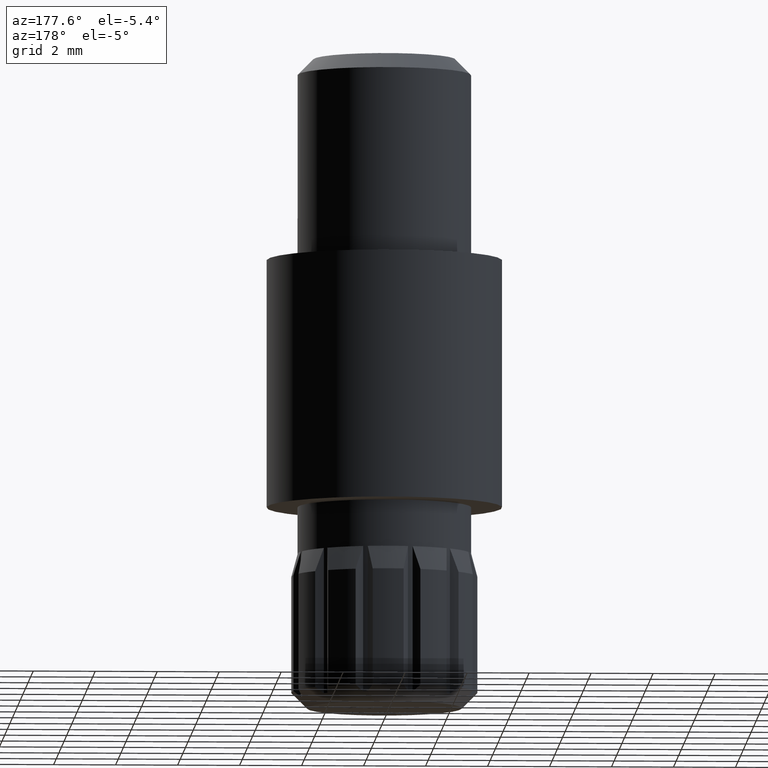
[diagram: clean part render]
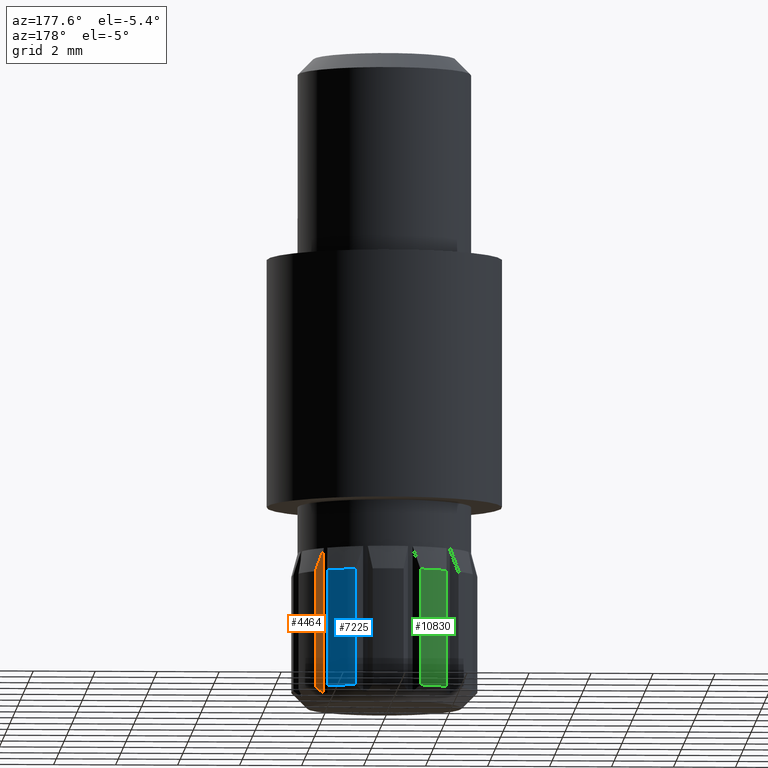
[diagram: same view with three faces highlighted in distinct colors, each labeled with its STEP entity id]
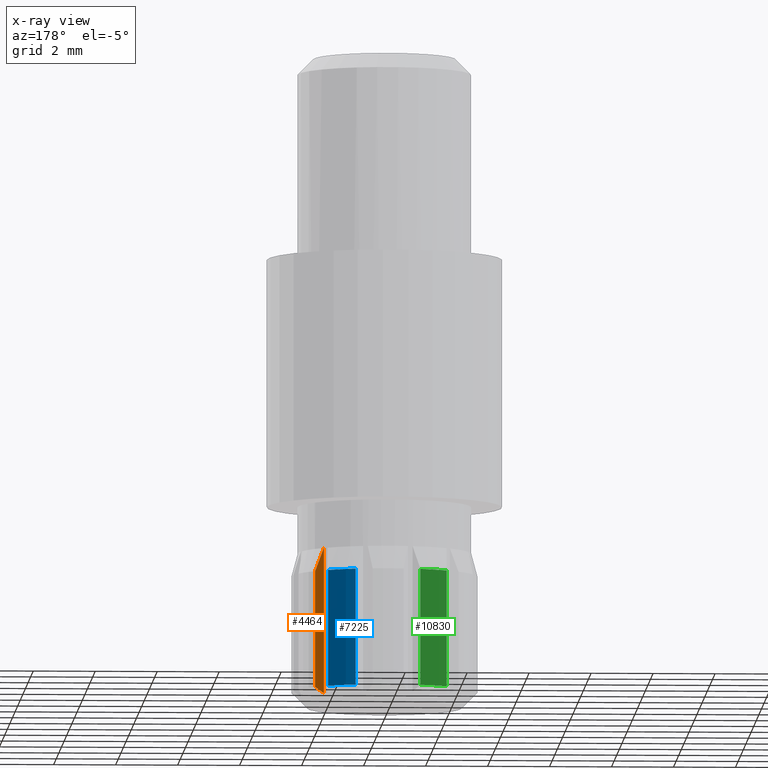
[diagram: x-ray of the same camera — body ghosted, the three highlighted faces saturated]
A machine part, auxiliary view with three faces highlighted in distinct colors.
The next image is the same camera in x-ray (body ghosted, the three faces saturated) — at least one of them is partly hidden behind the body in this view.
Their STEP definitions:

[orange] entity #4464 — the highlighted planar face has unit normal (0.0454, 0.999, 0).
#162 = CARTESIAN_POINT ( 'NONE',  ( 2.311737691489904378, 1.912032647667118335, 0.4999999999999998890 ) ) ;
#497 = DIRECTION ( 'NONE',  ( 0.000000000000000000, 0.000000000000000000, -1.000000000000000000 ) ) ;
#917 = VERTEX_POINT ( 'NONE', #162 ) ;
#1213 = EDGE_LOOP ( 'NONE', ( #10471, #11969, #3625, #2129 ) ) ;
#1222 = LINE ( 'NONE', #11818, #11319 ) ;
#2005 = VERTEX_POINT ( 'NONE', #11991 ) ;
#2129 = ORIENTED_EDGE ( 'NONE', *, *, #11508, .F. ) ;
#2152 = CARTESIAN_POINT ( 'NONE',  ( 2.311737691489904378, 1.912032647667118335, 5.000000000000000000 ) ) ;
#2288 = CARTESIAN_POINT ( 'NONE',  ( 2.311737691489904378, 1.912032647667118335, 0.4999999999999998890 ) ) ;
#2307 = DIRECTION ( 'NONE',  ( 0.04539650666530480744, 0.9989690471594137033, 0.000000000000000000 ) ) ;
#2692 = EDGE_CURVE ( 'NONE', #2005, #917, #4807, .T. ) ;
#3169 = CARTESIAN_POINT ( 'NONE',  ( 2.221517232374592865, 1.916132568165376915, 4.500908567543602246 ) ) ;
#3230 = DIRECTION ( 'NONE',  ( -0.9989690471594137033, 0.04539650666530480744, 0.000000000000000000 ) ) ;
#3625 = ORIENTED_EDGE ( 'NONE', *, *, #2692, .F. ) ;
#4232 = VECTOR ( 'NONE', #11677, 1000.000000000000000 ) ;
#4318 = EDGE_CURVE ( 'NONE', #7635, #917, #7195, .T. ) ;
#4464 = ADVANCED_FACE ( 'NONE', ( #5884 ), #6094, .T. ) ;
#4807 = B_SPLINE_CURVE_WITH_KNOTS ( 'NONE', 3,
 ( #8618, #9888, #10866, #2288 ),
 .UNSPECIFIED., .F., .F.,
 ( 4, 4 ),
 ( 2.437016887063888179E-07, 0.0003430335042216862886 ),
 .UNSPECIFIED. ) ;
#5884 = FACE_OUTER_BOUND ( 'NONE', #1213, .T. ) ;
#6094 = PLANE ( 'NONE',  #11198 ) ;
#6613 = B_SPLINE_CURVE_WITH_KNOTS ( 'NONE', 3,
 ( #7863, #3169, #11568, #9779 ),
 .UNSPECIFIED., .F., .F.,
 ( 4, 4 ),
 ( 2.125509851734810103E-07, 0.0008002155814297953230 ),
 .UNSPECIFIED. ) ;
#7195 = LINE ( 'NONE', #2152, #4232 ) ;
#7635 = VERTEX_POINT ( 'NONE', #11117 ) ;
#7863 = CARTESIAN_POINT ( 'NONE',  ( 2.311737691489905711, 1.912032647667118335, 4.250000000000000000 ) ) ;
#7972 = CARTESIAN_POINT ( 'NONE',  ( 2.033627779027463056, 1.924670895599512654, 5.000000000000000000 ) ) ;
#8618 = CARTESIAN_POINT ( 'NONE',  ( 2.033627779027463056, 1.924670895599512654, 0.2999999999999999334 ) ) ;
#9106 = EDGE_CURVE ( 'NONE', #7635, #9886, #6613, .T. ) ;
#9779 = CARTESIAN_POINT ( 'NONE',  ( 2.033627779027462612, 1.924670895599512432, 5.000000000000000888 ) ) ;
#9886 = VERTEX_POINT ( 'NONE', #11957 ) ;
#9888 = CARTESIAN_POINT ( 'NONE',  ( 2.127387933370347373, 1.920410119468690668, 0.3651688080806906322 ) ) ;
#10471 = ORIENTED_EDGE ( 'NONE', *, *, #9106, .F. ) ;
#10866 = CARTESIAN_POINT ( 'NONE',  ( 2.220020143417674952, 1.916200600912742358, 0.4319807832766579536 ) ) ;
#11117 = CARTESIAN_POINT ( 'NONE',  ( 2.311737691489905711, 1.912032647667118335, 4.250000000000000000 ) ) ;
#11198 = AXIS2_PLACEMENT_3D ( 'NONE', #7972, #2307, #3230 ) ;
#11319 = VECTOR ( 'NONE', #497, 1000.000000000000000 ) ;
#11508 = EDGE_CURVE ( 'NONE', #9886, #2005, #1222, .T. ) ;
#11568 = CARTESIAN_POINT ( 'NONE',  ( 2.129136141222523371, 1.920330675035813339, 4.751060318361802537 ) ) ;
#11677 = DIRECTION ( 'NONE',  ( 0.000000000000000000, 0.000000000000000000, -1.000000000000000000 ) ) ;
#11818 = CARTESIAN_POINT ( 'NONE',  ( 2.033627779027463056, 1.924670895599512654, 5.000000000000000000 ) ) ;
#11957 = CARTESIAN_POINT ( 'NONE',  ( 2.033627779027462612, 1.924670895599512432, 5.000000000000000888 ) ) ;
#11969 = ORIENTED_EDGE ( 'NONE', *, *, #4318, .T. ) ;
#11991 = CARTESIAN_POINT ( 'NONE',  ( 2.033627779027463056, 1.924670895599512654, 0.2999999999999999334 ) ) ;

[blue] entity #7225 — the highlighted cylindrical surface (partial cylindrical patch) has radius 3 mm, axis along (0, 0, -1).
#255 = VECTOR ( 'NONE', #12331, 1000.000000000000000 ) ;
#478 = CARTESIAN_POINT ( 'NONE',  ( 1.912032647667126106, 2.311737691489897273, 0.4999999999999998890 ) ) ;
#571 = DIRECTION ( 'NONE',  ( -1.000000000000000000, 0.000000000000000000, 0.000000000000000000 ) ) ;
#637 = CARTESIAN_POINT ( 'NONE',  ( 1.046007243882688620, 2.811737691489899493, 4.250000000000000000 ) ) ;
#1090 = EDGE_CURVE ( 'NONE', #10732, #7256, #3703, .T. ) ;
#1957 = DIRECTION ( 'NONE',  ( -1.000000000000000000, 0.000000000000000000, 0.000000000000000000 ) ) ;
#2119 = CIRCLE ( 'NONE', #7825, 3.000000000000000888 ) ;
#2165 = FACE_OUTER_BOUND ( 'NONE', #10685, .T. ) ;
#2650 = CARTESIAN_POINT ( 'NONE',  ( 1.912032647667126328, 2.311737691489897717, 5.000000000000000000 ) ) ;
#3073 = CARTESIAN_POINT ( 'NONE',  ( 1.046007243882687288, 2.811737691489899049, 0.4999999999999998890 ) ) ;
#3236 = EDGE_CURVE ( 'NONE', #4921, #6716, #9753, .T. ) ;
#3703 = LINE ( 'NONE', #4173, #8887 ) ;
#4173 = CARTESIAN_POINT ( 'NONE',  ( 1.046007243882688176, 2.811737691489898605, 5.000000000000000000 ) ) ;
#4823 = CARTESIAN_POINT ( 'NONE',  ( 0.000000000000000000, 0.000000000000000000, 5.000000000000000000 ) ) ;
#4921 = VERTEX_POINT ( 'NONE', #8245 ) ;
#5280 = CARTESIAN_POINT ( 'NONE',  ( 0.000000000000000000, 0.000000000000000000, 4.250000000000000000 ) ) ;
#6162 = DIRECTION ( 'NONE',  ( 0.000000000000000000, 0.000000000000000000, -1.000000000000000000 ) ) ;
#6588 = ORIENTED_EDGE ( 'NONE', *, *, #1090, .F. ) ;
#6716 = VERTEX_POINT ( 'NONE', #478 ) ;
#6840 = CIRCLE ( 'NONE', #11604, 3.000000000000000000 ) ;
#6876 = CYLINDRICAL_SURFACE ( 'NONE', #7881, 3.000000000000000444 ) ;
#7225 = ADVANCED_FACE ( 'NONE', ( #2165 ), #6876, .T. ) ;
#7256 = VERTEX_POINT ( 'NONE', #3073 ) ;
#7687 = CARTESIAN_POINT ( 'NONE',  ( 0.000000000000000000, 0.000000000000000000, 0.4999999999999998890 ) ) ;
#7730 = DIRECTION ( 'NONE',  ( -0.000000000000000000, -0.000000000000000000, -1.000000000000000000 ) ) ;
#7825 = AXIS2_PLACEMENT_3D ( 'NONE', #5280, #8133, #571 ) ;
#7881 = AXIS2_PLACEMENT_3D ( 'NONE', #4823, #10522, #10564 ) ;
#8133 = DIRECTION ( 'NONE',  ( -0.000000000000000000, -0.000000000000000000, -1.000000000000000000 ) ) ;
#8220 = ORIENTED_EDGE ( 'NONE', *, *, #12295, .T. ) ;
#8245 = CARTESIAN_POINT ( 'NONE',  ( 1.912032647667126772, 2.311737691489898161, 4.250000000000000000 ) ) ;
#8887 = VECTOR ( 'NONE', #6162, 1000.000000000000000 ) ;
#9753 = LINE ( 'NONE', #2650, #255 ) ;
#10522 = DIRECTION ( 'NONE',  ( 0.000000000000000000, 0.000000000000000000, -1.000000000000000000 ) ) ;
#10564 = DIRECTION ( 'NONE',  ( -1.000000000000000000, 0.000000000000000000, 0.000000000000000000 ) ) ;
#10685 = EDGE_LOOP ( 'NONE', ( #8220, #11786, #12055, #6588 ) ) ;
#10732 = VERTEX_POINT ( 'NONE', #637 ) ;
#11267 = EDGE_CURVE ( 'NONE', #7256, #6716, #6840, .T. ) ;
#11604 = AXIS2_PLACEMENT_3D ( 'NONE', #7687, #7730, #1957 ) ;
#11786 = ORIENTED_EDGE ( 'NONE', *, *, #3236, .T. ) ;
#12055 = ORIENTED_EDGE ( 'NONE', *, *, #11267, .F. ) ;
#12295 = EDGE_CURVE ( 'NONE', #10732, #4921, #2119, .T. ) ;
#12331 = DIRECTION ( 'NONE',  ( 0.000000000000000000, 0.000000000000000000, -1.000000000000000000 ) ) ;

[green] entity #10830 — the highlighted cylindrical surface (partial cylindrical patch) has radius 3 mm, axis along (0, 0, -1).
#45 = EDGE_CURVE ( 'NONE', #7598, #9848, #3278, .T. ) ;
#132 = CARTESIAN_POINT ( 'NONE',  ( -1.046007243882648874, 2.811737691489913260, 5.000000000000000000 ) ) ;
#175 = AXIS2_PLACEMENT_3D ( 'NONE', #7528, #4827, #5703 ) ;
#933 = DIRECTION ( 'NONE',  ( 0.000000000000000000, 0.000000000000000000, -1.000000000000000000 ) ) ;
#1194 = DIRECTION ( 'NONE',  ( 0.000000000000000000, 0.000000000000000000, -1.000000000000000000 ) ) ;
#1328 = EDGE_CURVE ( 'NONE', #6364, #7598, #5904, .T. ) ;
#1731 = ORIENTED_EDGE ( 'NONE', *, *, #10045, .F. ) ;
#2664 = AXIS2_PLACEMENT_3D ( 'NONE', #8163, #5385, #8334 ) ;
#2696 = ORIENTED_EDGE ( 'NONE', *, *, #8062, .F. ) ;
#2731 = AXIS2_PLACEMENT_3D ( 'NONE', #5551, #4639, #7454 ) ;
#2751 = CARTESIAN_POINT ( 'NONE',  ( -1.912032647667093910, 2.311737691489923918, 0.4999999999999998890 ) ) ;
#2864 = VERTEX_POINT ( 'NONE', #2751 ) ;
#2900 = EDGE_LOOP ( 'NONE', ( #11903, #10268, #2696, #1731 ) ) ;
#3278 = LINE ( 'NONE', #132, #7403 ) ;
#4389 = CARTESIAN_POINT ( 'NONE',  ( -1.046007243882648874, 2.811737691489913260, 0.4999999999999998890 ) ) ;
#4639 = DIRECTION ( 'NONE',  ( 0.000000000000000000, 0.000000000000000000, -1.000000000000000000 ) ) ;
#4719 = CARTESIAN_POINT ( 'NONE',  ( -1.912032647667094132, 2.311737691489924362, 5.000000000000000000 ) ) ;
#4827 = DIRECTION ( 'NONE',  ( -0.000000000000000000, -0.000000000000000000, -1.000000000000000000 ) ) ;
#5385 = DIRECTION ( 'NONE',  ( -0.000000000000000000, -0.000000000000000000, -1.000000000000000000 ) ) ;
#5551 = CARTESIAN_POINT ( 'NONE',  ( 0.000000000000000000, 0.000000000000000000, 5.000000000000000000 ) ) ;
#5703 = DIRECTION ( 'NONE',  ( -1.000000000000000000, 0.000000000000000000, 0.000000000000000000 ) ) ;
#5904 = CIRCLE ( 'NONE', #175, 3.000000000000000888 ) ;
#6364 = VERTEX_POINT ( 'NONE', #10993 ) ;
#6978 = CYLINDRICAL_SURFACE ( 'NONE', #2731, 3.000000000000000444 ) ;
#7403 = VECTOR ( 'NONE', #1194, 1000.000000000000000 ) ;
#7442 = LINE ( 'NONE', #4719, #7736 ) ;
#7454 = DIRECTION ( 'NONE',  ( -1.000000000000000000, 0.000000000000000000, 0.000000000000000000 ) ) ;
#7528 = CARTESIAN_POINT ( 'NONE',  ( 0.000000000000000000, 0.000000000000000000, 4.250000000000000000 ) ) ;
#7598 = VERTEX_POINT ( 'NONE', #11155 ) ;
#7736 = VECTOR ( 'NONE', #933, 1000.000000000000000 ) ;
#8062 = EDGE_CURVE ( 'NONE', #2864, #9848, #10905, .T. ) ;
#8163 = CARTESIAN_POINT ( 'NONE',  ( 0.000000000000000000, 0.000000000000000000, 0.4999999999999998890 ) ) ;
#8334 = DIRECTION ( 'NONE',  ( -1.000000000000000000, 0.000000000000000000, 0.000000000000000000 ) ) ;
#9810 = FACE_OUTER_BOUND ( 'NONE', #2900, .T. ) ;
#9848 = VERTEX_POINT ( 'NONE', #4389 ) ;
#10045 = EDGE_CURVE ( 'NONE', #6364, #2864, #7442, .T. ) ;
#10268 = ORIENTED_EDGE ( 'NONE', *, *, #45, .T. ) ;
#10830 = ADVANCED_FACE ( 'NONE', ( #9810 ), #6978, .T. ) ;
#10905 = CIRCLE ( 'NONE', #2664, 3.000000000000000000 ) ;
#10993 = CARTESIAN_POINT ( 'NONE',  ( -1.912032647667093910, 2.311737691489925250, 4.250000000000000000 ) ) ;
#11155 = CARTESIAN_POINT ( 'NONE',  ( -1.046007243882649096, 2.811737691489913704, 4.250000000000000000 ) ) ;
#11903 = ORIENTED_EDGE ( 'NONE', *, *, #1328, .T. ) ;